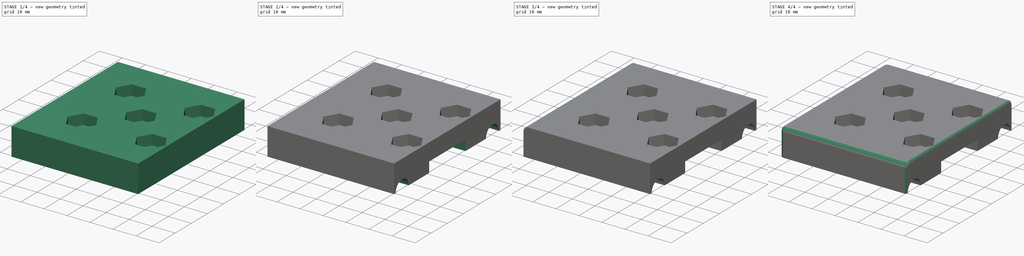
[diagram: build sequence overview — one tinted view per stage of 4, left to right]
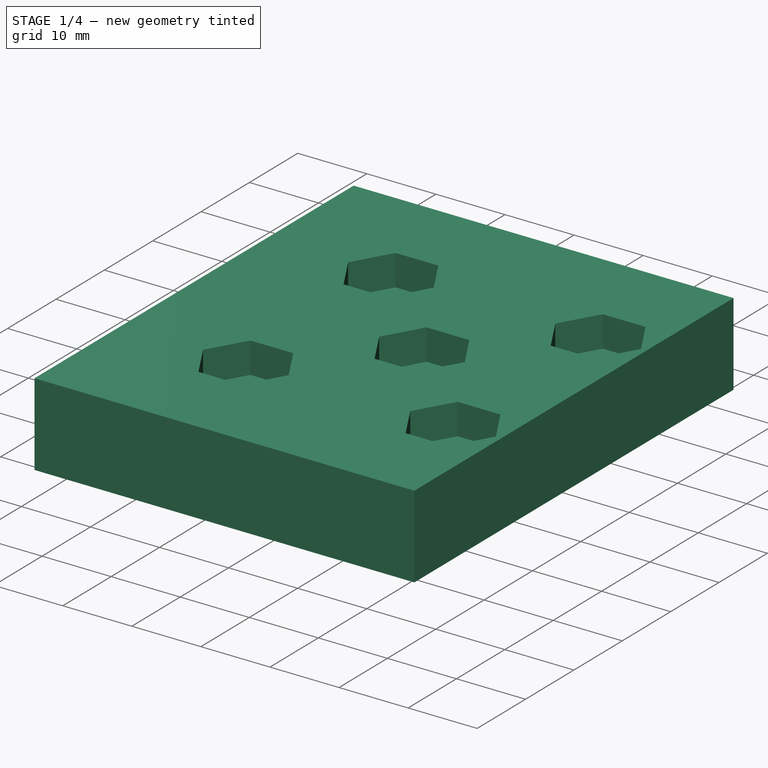
[diagram: stage 1 of 4 — iso view after this stage's code; geometry added in this stage tinted green]
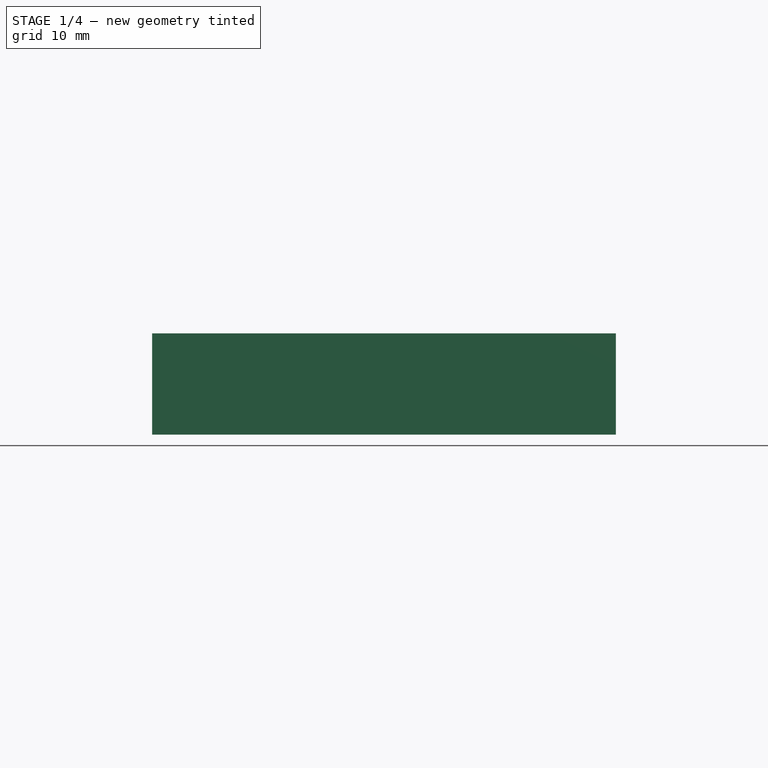
[diagram: stage 1 of 4 — front view after this stage's code; geometry added in this stage tinted green]
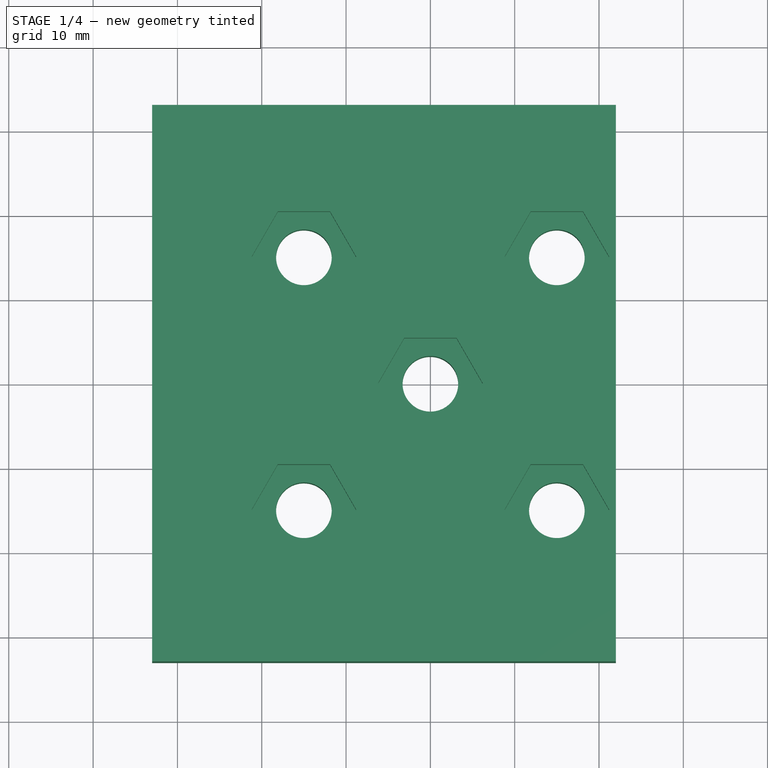
[diagram: stage 1 of 4 — top view after this stage's code; geometry added in this stage tinted green]
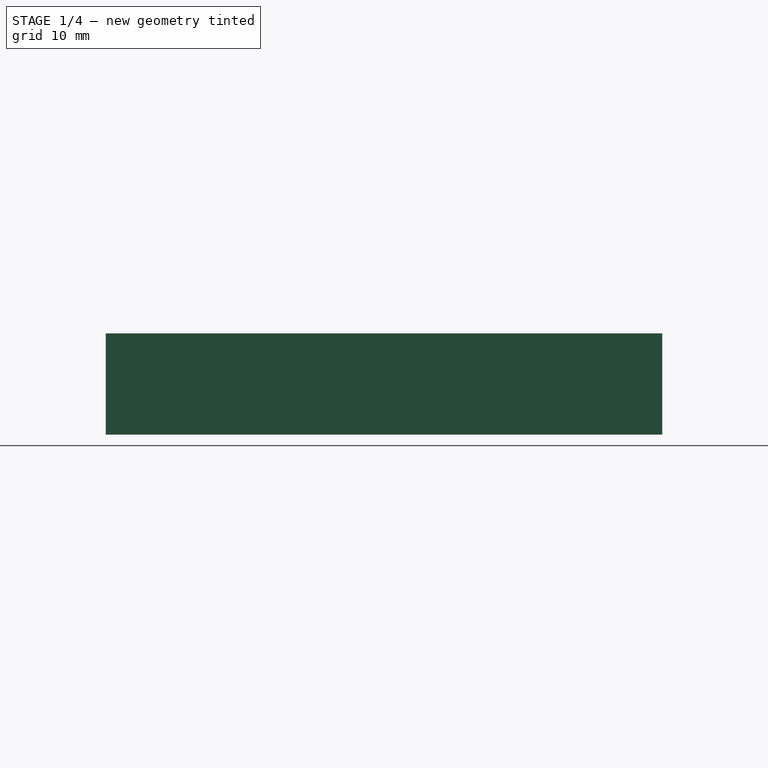
[diagram: stage 1 of 4 — right view after this stage's code; geometry added in this stage tinted green]
FCSTD DOCUMENT  (FreeCAD 0.17R9796 (Git))
Label: idlerSide_8mm_rods_v02
License: All rights reserved
LicenseURL: http://en.wikipedia.org/wiki/All_rights_reserved
objects: Sketcher::SketchObject×7, PartDesign::Pocket×6, PartDesign::Fillet×3, PartDesign::Pad×1, PartDesign::Chamfer×1
note: 25 computed .brp shape members not serialized (recipe doc carries the construction recipe); baked Part::Feature solids carry a one-line shape summary decoded from their .brp

FEATURE [Sketcher::SketchObject] Sketch  label="IdlerBlockSketch"
  MapMode = 5
  sketch-geometry (5):
    g0: LineSegment StartX=-33 StartY=33 StartZ=0 EndX=22 EndY=33 EndZ=0
    g1: LineSegment StartX=22 StartY=33 StartZ=0 EndX=22 EndY=-33 EndZ=0
    g2: LineSegment StartX=22 StartY=-33 StartZ=0 EndX=-33 EndY=-33 EndZ=0
    g3: LineSegment StartX=-33 StartY=-33 StartZ=0 EndX=-33 EndY=33 EndZ=0
    g4: GeomPoint [constr] X=-33 Y=0 Z=0
  constraints (13):
    c: Coincident(g0,g1)
    c: Coincident(g1,g2)
    c: Coincident(g2,g3)
    c: Coincident(g3,g0)
    c: Horizontal(g0)
    c: Horizontal(g2)
    c: Vertical(g1)
    c: Vertical(g3)
    c: Symmetric(g0,g2,g4)
    c: DistanceY(g4,g-1) = 0
    c: DistanceX(g0,g-1) = 33
    c: DistanceX(g-1,g0) = 22
    c: DistanceY(g3,g3) = 66
FEATURE [PartDesign::Pad] Pad  label="IdlerBlockPad"
  Length = 12
  Length2 = 100
  Profile = -> Sketch
  Type = 0
FEATURE [Sketcher::SketchObject] Sketch001  label="NutCatchersFrontSketch"
  MapMode = 5
  Placement = pos=(0,0,12) rot=(0,0,1;0rad)
  Support = -> [Pad]
  sketch-geometry (43):
    g0: LineSegment [constr] StartX=-15 StartY=15 StartZ=0 EndX=15 EndY=15 EndZ=0
    g1: LineSegment [constr] StartX=15 StartY=15 StartZ=0 EndX=15 EndY=-15 EndZ=0
    g2: LineSegment [constr] StartX=15 StartY=-15 StartZ=0 EndX=-15 EndY=-15 EndZ=0
    g3: LineSegment [constr] StartX=-15 StartY=-15 StartZ=0 EndX=-15 EndY=15 EndZ=0
    g4: GeomPoint [constr] X=-15 Y=0 Z=0
    g5: GeomPoint [constr] X=0 Y=15 Z=0
    g6: LineSegment [constr] StartX=-15 StartY=0 StartZ=0 EndX=0 EndY=0 EndZ=0
    g7: LineSegment [constr] StartX=0 StartY=0 StartZ=0 EndX=0 EndY=15 EndZ=0
    g8: LineSegment StartX=18.1 StartY=9.63064 StartZ=0 EndX=21.2 EndY=15 EndZ=0
    g9: LineSegment StartX=21.2 StartY=15 StartZ=0 EndX=18.1 EndY=20.3694 EndZ=0
    g10: LineSegment StartX=18.1 StartY=20.3694 StartZ=0 EndX=11.9 EndY=20.3694 EndZ=0
    g11: LineSegment StartX=11.9 StartY=20.3694 StartZ=0 EndX=8.8 EndY=15 EndZ=0
    g12: LineSegment StartX=8.8 StartY=15 StartZ=0 EndX=11.9 EndY=9.63064 EndZ=0
    g13: LineSegment StartX=11.9 StartY=9.63064 StartZ=0 EndX=18.1 EndY=9.63064 EndZ=0
    g14: Circle [constr] CenterX=15 CenterY=15 CenterZ=0 NormalX=0 NormalY=0 NormalZ=1 Radius=6.2
    g15: LineSegment StartX=-11.9 StartY=-20.3694 StartZ=0 EndX=-8.8 EndY=-15 EndZ=0
    g16: LineSegment StartX=-8.8 StartY=-15 StartZ=0 EndX=-11.9 EndY=-9.63064 EndZ=0
    g17: LineSegment StartX=-11.9 StartY=-9.63064 StartZ=0 EndX=-18.1 EndY=-9.63064 EndZ=0
    g18: LineSegment StartX=-18.1 StartY=-9.63064 StartZ=0 EndX=-21.2 EndY=-15 EndZ=0
    g19: LineSegment StartX=-21.2 StartY=-15 StartZ=0 EndX=-18.1 EndY=-20.3694 EndZ=0
    g20: LineSegment StartX=-18.1 StartY=-20.3694 StartZ=0 EndX=-11.9 EndY=-20.3694 EndZ=0
    g21: Circle [constr] CenterX=-15 CenterY=-15 CenterZ=0 NormalX=0 NormalY=0 NormalZ=1 Radius=6.2
    g22: LineSegment StartX=11.9 StartY=-9.63064 StartZ=0 EndX=8.8 EndY=-15 EndZ=0
    g23: LineSegment StartX=8.8 StartY=-15 StartZ=0 EndX=11.9 EndY=-20.3694 EndZ=0
    g24: LineSegment StartX=11.9 StartY=-20.3694 StartZ=0 EndX=18.1 EndY=-20.3694 EndZ=0
    g25: LineSegment StartX=18.1 StartY=-20.3694 StartZ=0 EndX=21.2 EndY=-15 EndZ=0
    g26: LineSegment StartX=21.2 StartY=-15 StartZ=0 EndX=18.1 EndY=-9.63064 EndZ=0
    g27: LineSegment StartX=18.1 StartY=-9.63064 StartZ=0 EndX=11.9 EndY=-9.63064 EndZ=0
    g28: Circle [constr] CenterX=15 CenterY=-15 CenterZ=0 NormalX=0 NormalY=0 NormalZ=1 Radius=6.2
    g29: LineSegment StartX=-8.8 StartY=15 StartZ=0 EndX=-11.9 EndY=20.3694 EndZ=0
    g30: LineSegment StartX=-11.9 StartY=20.3694 StartZ=0 EndX=-18.1 EndY=20.3694 EndZ=0
    g31: LineSegment StartX=-18.1 StartY=20.3694 StartZ=0 EndX=-21.2 EndY=15 EndZ=0
    g32: LineSegment StartX=-21.2 StartY=15 StartZ=0 EndX=-18.1 EndY=9.63064 EndZ=0
    g33: LineSegment StartX=-18.1 StartY=9.63064 StartZ=0 EndX=-11.9 EndY=9.63064 EndZ=0
    g34: LineSegment StartX=-11.9 StartY=9.63064 StartZ=0 EndX=-8.8 EndY=15 EndZ=0
    g35: Circle [constr] CenterX=-15 CenterY=15 CenterZ=0 NormalX=0 NormalY=0 NormalZ=1 Radius=6.2
    g36: LineSegment StartX=3.1 StartY=-5.36936 StartZ=0 EndX=6.2 EndY=0 EndZ=0
    g37: LineSegment StartX=6.2 StartY=0 StartZ=0 EndX=3.1 EndY=5.36936 EndZ=0
    g38: LineSegment StartX=3.1 StartY=5.36936 StartZ=0 EndX=-3.1 EndY=5.36936 EndZ=0
    g39: LineSegment StartX=-3.1 StartY=5.36936 StartZ=0 EndX=-6.2 EndY=0 EndZ=0
    g40: LineSegment StartX=-6.2 StartY=0 StartZ=0 EndX=-3.1 EndY=-5.36936 EndZ=0
    g41: LineSegment StartX=-3.1 StartY=-5.36936 StartZ=0 EndX=3.1 EndY=-5.36936 EndZ=0
    g42: Circle [constr] CenterX=0 CenterY=0 CenterZ=0 NormalX=0 NormalY=0 NormalZ=1 Radius=6.2
  constraints (98):
    c: Coincident(g0,g1)
    c: Coincident(g1,g2)
    c: Coincident(g2,g3)
    c: Coincident(g3,g0)
    c: Horizontal(g0)
    c: Horizontal(g2)
    c: Vertical(g1)
    c: Vertical(g3)
    c: Symmetric(g0,g0,g5)
    c: Symmetric(g0,g2,g4)
    c: DistanceY(g4,g-1) = 0
    c: DistanceX(g5,g-1) = 0
    c: Coincident(g6,g4)
    c: Coincident(g6,g-1)
    c: Coincident(g7,g-1)
    c: Coincident(g7,g5)
    c: Equal(g6,g7)
    c: DistanceX(g0,g5) = 15
    c: Coincident(g8,g9)
    c: Coincident(g9,g10)
    c: Coincident(g10,g11)
    c: Coincident(g11,g12)
    c: Coincident(g12,g13)
    c: Coincident(g13,g8)
    c: Equal(g8, g9-g13) x5
    c: PointOnObject(g8,g14)
    c: PointOnObject(g9,g14)
    c: PointOnObject(g10,g14)
    c: PointOnObject(g11,g14)
    c: PointOnObject(g12,g14)
    c: PointOnObject(g13,g14)
    c: Horizontal(g13)
    c: Coincident(g14,g0)
    c: Coincident(g15,g16)
    c: Coincident(g16,g17)
    c: Coincident(g17,g18)
    c: Coincident(g18,g19)
    c: Coincident(g19,g20)
    c: Coincident(g20,g15)
    c: Equal(g15, g16-g20) x5
    c: PointOnObject(g15,g21)
    c: PointOnObject(g16,g21)
    c: PointOnObject(g17,g21)
    c: PointOnObject(g18,g21)
    c: PointOnObject(g19,g21)
    c: PointOnObject(g20,g21)
    c: Horizontal(g20)
    c: Coincident(g22,g23)
    c: Coincident(g23,g24)
    c: Coincident(g24,g25)
    c: Coincident(g25,g26)
    c: Coincident(g26,g27)
    c: Coincident(g27,g22)
    c: Equal(g22, g23-g27) x5
    c: PointOnObject(g22,g28)
    c: PointOnObject(g23,g28)
    c: PointOnObject(g24,g28)
    c: PointOnObject(g25,g28)
    c: PointOnObject(g26,g28)
    c: PointOnObject(g27,g28)
    c: Horizontal(g27)
    c: Coincident(g1,g28)
    c: Coincident(g2,g21)
    c: Coincident(g29,g30)
    c: Coincident(g30,g31)
    c: Coincident(g31,g32)
    c: Coincident(g32,g33)
    c: Coincident(g33,g34)
    c: Coincident(g34,g29)
    c: Equal(g29, g30-g34) x5
    c: PointOnObject(g29,g35)
    c: PointOnObject(g30,g35)
    c: PointOnObject(g31,g35)
    c: PointOnObject(g32,g35)
    c: PointOnObject(g33,g35)
    c: PointOnObject(g34,g35)
    c: Horizontal(g33)
    c: Coincident(g0,g35)
    c: Coincident(g36,g37)
    c: Coincident(g37,g38)
    c: Coincident(g38,g39)
    c: Coincident(g39,g40)
    c: Coincident(g40,g41)
    c: Coincident(g41,g36)
    c: Equal(g36, g37-g41) x5
    c: PointOnObject(g36,g42)
    c: PointOnObject(g37,g42)
    c: PointOnObject(g38,g42)
    c: PointOnObject(g39,g42)
    c: PointOnObject(g40,g42)
    c: PointOnObject(g41,g42)
    c: Horizontal(g41)
    c: Coincident(g-1,g42)
    c: Equal(g35,g42)
    c: Equal(g42,g14)
    c: Equal(g14,g28)
    c: Equal(g28,g21)
    c: Radius(g42) = 6.2
FEATURE [PartDesign::Pocket] Pocket  label="NutCatchersFrontPocket"
  Length = 4.5
  Profile = -> Sketch001
  Type = 0
FEATURE [Sketcher::SketchObject] Sketch002  label="BoltHolesFrontSketch"
  MapMode = 5
  Placement = pos=(0,0,7.5) rot=(0,0,1;0rad)
  Support = -> [Pocket]
  sketch-geometry (13):
    g0: LineSegment [constr] StartX=-15 StartY=15 StartZ=0 EndX=15 EndY=15 EndZ=0
    g1: LineSegment [constr] StartX=15 StartY=15 StartZ=0 EndX=15 EndY=-15 EndZ=0
    g2: LineSegment [constr] StartX=15 StartY=-15 StartZ=0 EndX=-15 EndY=-15 EndZ=0
    g3: LineSegment [constr] StartX=-15 StartY=-15 StartZ=0 EndX=-15 EndY=15 EndZ=0
    g4: GeomPoint [constr] X=0 Y=15 Z=0
    g5: GeomPoint [constr] X=-15 Y=0 Z=0
    g6: LineSegment [constr] StartX=-15 StartY=0 StartZ=0 EndX=0 EndY=0 EndZ=0
    g7: LineSegment [constr] StartX=0 StartY=0 StartZ=0 EndX=0 EndY=15 EndZ=0
    g8: Circle CenterX=-15 CenterY=15 CenterZ=0 NormalX=0 NormalY=0 NormalZ=1 Radius=3.3
    g9: Circle CenterX=15 CenterY=15 CenterZ=0 NormalX=0 NormalY=0 NormalZ=1 Radius=3.3
    g10: Circle CenterX=0 CenterY=0 CenterZ=0 NormalX=0 NormalY=0 NormalZ=1 Radius=3.3
    g11: Circle CenterX=15 CenterY=-15 CenterZ=0 NormalX=0 NormalY=0 NormalZ=1 Radius=3.3
    g12: Circle CenterX=-15 CenterY=-15 CenterZ=0 NormalX=0 NormalY=0 NormalZ=1 Radius=3.3
  constraints (28):
    c: Coincident(g0,g1)
    c: Coincident(g1,g2)
    c: Coincident(g2,g3)
    c: Coincident(g3,g0)
    c: Horizontal(g0)
    c: Horizontal(g2)
    c: Vertical(g1)
    c: Vertical(g3)
    c: Symmetric(g2,g0,g5)
    c: Symmetric(g0,g0,g4)
    c: DistanceY(g5,g-1) = 0
    c: DistanceX(g-1,g4) = 0
    c: Coincident(g6,g5)
    c: Coincident(g6,g-1)
    c: Coincident(g7,g-1)
    c: Coincident(g7,g4)
    c: Equal(g6,g7)
    c: DistanceX(g0,g4) = 15
    c: Coincident(g0,g8)
    c: Coincident(g-1,g10)
    c: Coincident(g9,g0)
    c: Coincident(g12,g2)
    c: Coincident(g1,g11)
    c: Equal(g8,g9)
    c: Equal(g9,g10)
    c: Equal(g10,g11)
    c: Equal(g11,g12)
    c: Radius(g10) = 3.3
FEATURE [PartDesign::Pocket] Pocket001  label="BoltHolesFrontPocket"
  Length = 5
  Profile = -> Sketch002
  Type = 1
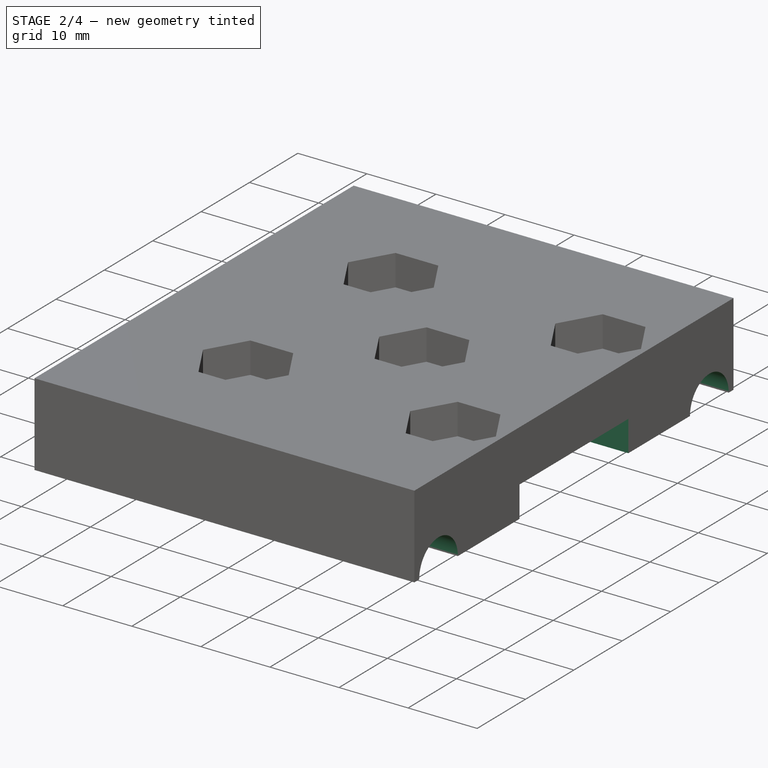
[diagram: stage 2 of 4 — iso view after this stage's code; geometry added in this stage tinted green]
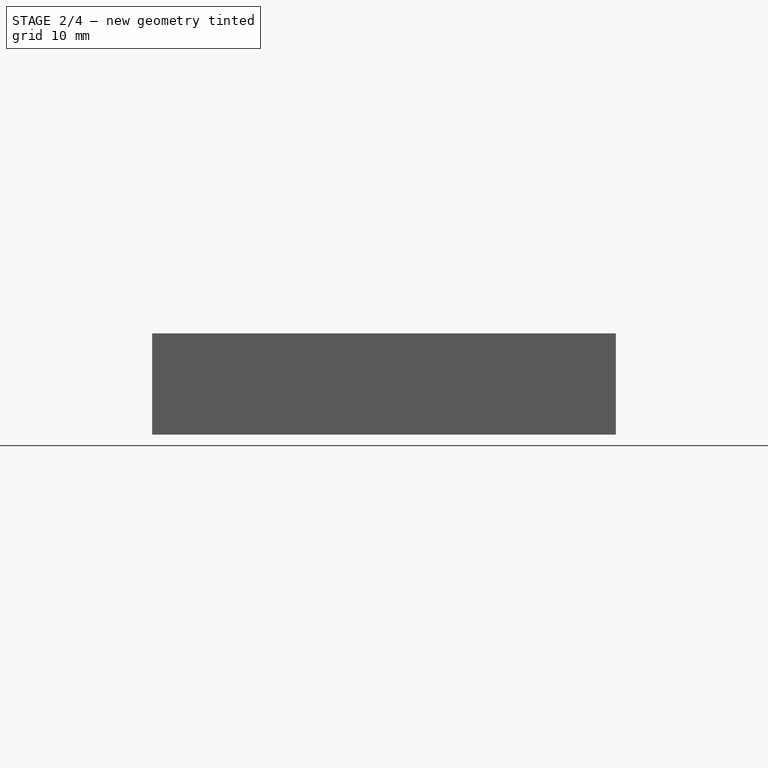
[diagram: stage 2 of 4 — front view after this stage's code; geometry added in this stage tinted green]
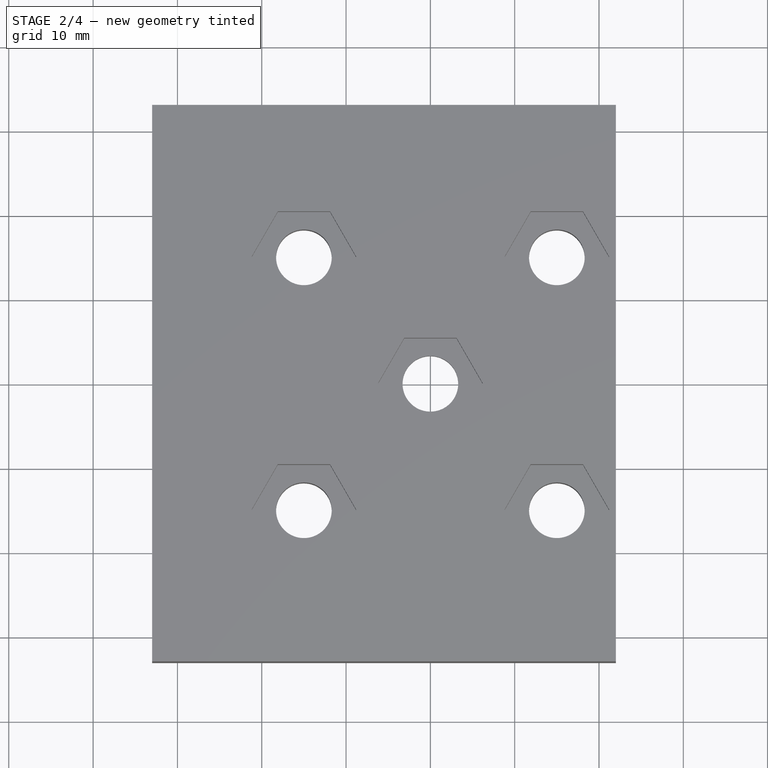
[diagram: stage 2 of 4 — top view after this stage's code; geometry added in this stage tinted green]
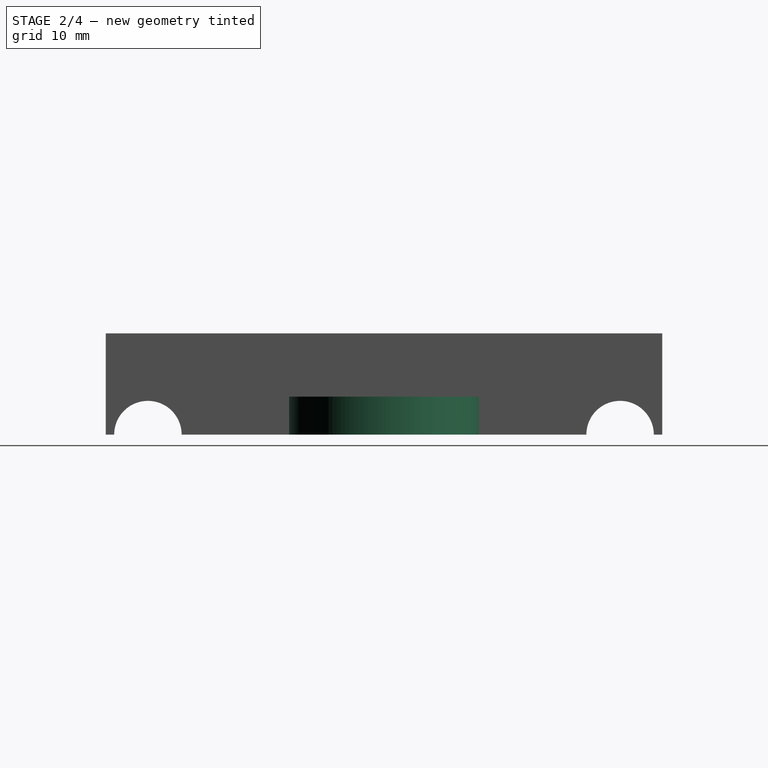
[diagram: stage 2 of 4 — right view after this stage's code; geometry added in this stage tinted green]
FEATURE [Sketcher::SketchObject] Sketch003  label="RodsHolderSketch"
  MapMode = 5
  Placement = pos=(22,0,0) rot=(0.57735,0.57735,0.57735;2.0944rad)
  Support = -> [Pocket001]
  sketch-geometry (4):
    g0: LineSegment [constr] StartX=0 StartY=0 StartZ=0 EndX=-28 EndY=0 EndZ=0
    g1: LineSegment [constr] StartX=0 StartY=0 StartZ=0 EndX=28 EndY=0 EndZ=0
    g2: Circle CenterX=-28 CenterY=0 CenterZ=0 NormalX=0 NormalY=0 NormalZ=1 Radius=4
    g3: Circle CenterX=28 CenterY=0 CenterZ=0 NormalX=0 NormalY=0 NormalZ=1 Radius=4
  constraints (10):
    c: Horizontal(g0)
    c: Horizontal(g1)
    c: Coincident(g0,g-1)
    c: Coincident(g-1,g1)
    c: Equal(g0,g1)
    c: DistanceX(g0,g-1) = 28
    c: Equal(g2,g3)
    c: Radius(g2) = 4
    c: Coincident(g0,g2)
    c: Coincident(g1,g3)
FEATURE [PartDesign::Pocket] Pocket002  label="RodHolderPocket"
  Length = 5
  Profile = -> Sketch003
  Type = 1
FEATURE [Sketcher::SketchObject] Sketch004  label="BeltPassageSketch"
  MapMode = 5
  Placement = pos=(0,0,0) rot=(1,0,0;3.14159rad)
  Support = -> [Pocket002]
  sketch-geometry (4):
    g0: ArcOfCircle CenterX=0 CenterY=0 CenterZ=0 NormalX=0 NormalY=0 NormalZ=1 Radius=11.25 StartAngle=1.5708 EndAngle=4.71239
    g1: LineSegment StartX=-1e-12 StartY=11.25 StartZ=0 EndX=22 EndY=11.25 EndZ=0
    g2: LineSegment StartX=3e-12 StartY=-11.25 StartZ=0 EndX=22 EndY=-11.25 EndZ=0
    g3: LineSegment StartX=22 StartY=11.25 StartZ=0 EndX=22 EndY=-11.25 EndZ=0
  constraints (13):
    c: Coincident(g0,g-1)
    c: PointOnObject(g0,g-2)
    c: PointOnObject(g0,g-2)
    c: DistanceY(g0,g0) = 22.5
    c: Coincident(g1,g0)
    c: Horizontal(g1)
    c: Coincident(g2,g0)
    c: Horizontal(g2)
    c: Coincident(g3,g1)
    c: Coincident(g3,g2)
    c: Vertical(g3)
    c: Equal(g1,g2)
    c: DistanceX(g0,g1) = 22
FEATURE [PartDesign::Pocket] Pocket003  label="BeltPassagePocket"
  Length = 4.5
  Profile = -> Sketch004
  Type = 0
FEATURE [Sketcher::SketchObject] Sketch005  label="BoltHolesSideSketch"
  MapMode = 5
  Placement = pos=(-33,0,0) rot=(0.57735,-0.57735,-0.57735;2.0944rad)
  Support = -> [Pocket003]
  sketch-geometry (4):
    g0: LineSegment [constr] StartX=0 StartY=0 StartZ=0 EndX=-15 EndY=0 EndZ=0
    g1: LineSegment [constr] StartX=0 StartY=0 StartZ=0 EndX=15 EndY=0 EndZ=0
    g2: Circle CenterX=-15 CenterY=0 CenterZ=0 NormalX=0 NormalY=0 NormalZ=1 Radius=3.3
    g3: Circle CenterX=15 CenterY=0 CenterZ=0 NormalX=0 NormalY=0 NormalZ=1 Radius=3.3
  constraints (10):
    c: Horizontal(g0)
    c: Horizontal(g1)
    c: Coincident(g0,g-1)
    c: Coincident(g-1,g1)
    c: Equal(g0,g1)
    c: DistanceX(g0,g-1) = 15
    c: Coincident(g0,g2)
    c: Coincident(g1,g3)
    c: Equal(g2,g3)
    c: Radius(g2) = 3.3
FEATURE [PartDesign::Pocket] Pocket004  label="BoltHolesPocket"
  Length = 5.5
  Profile = -> Sketch005
  Type = 0
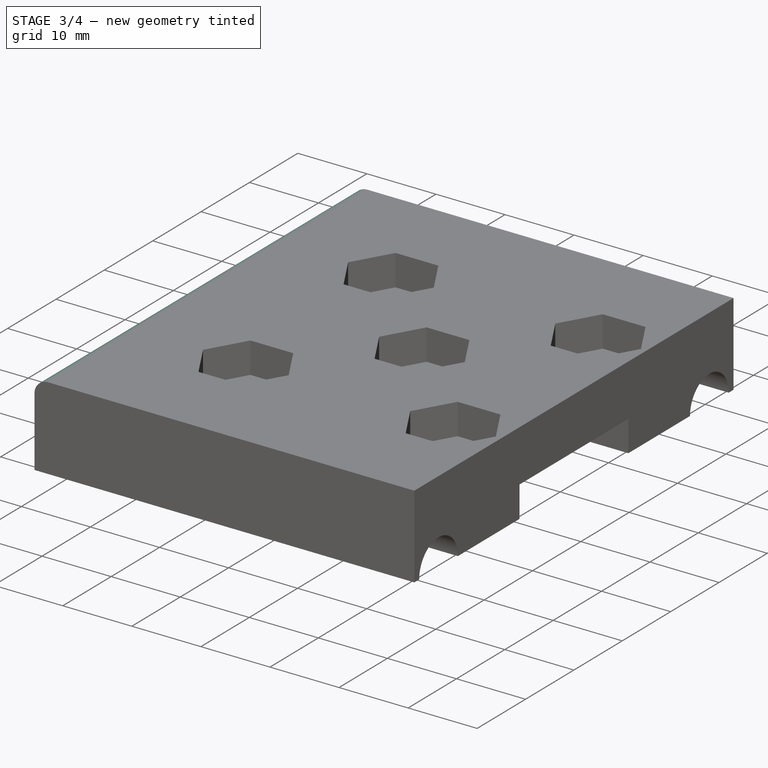
[diagram: stage 3 of 4 — iso view after this stage's code; geometry added in this stage tinted green]
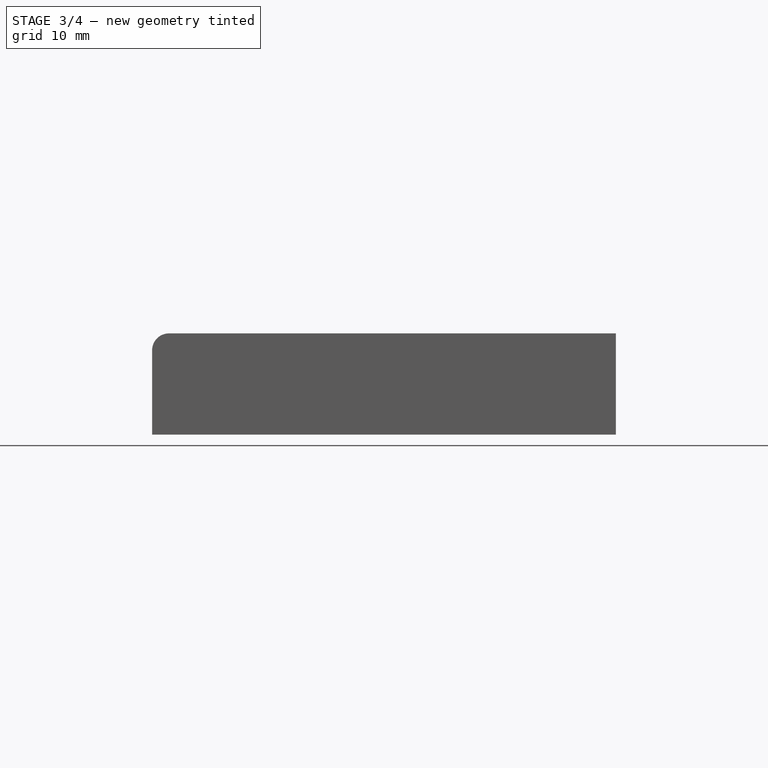
[diagram: stage 3 of 4 — front view after this stage's code; geometry added in this stage tinted green]
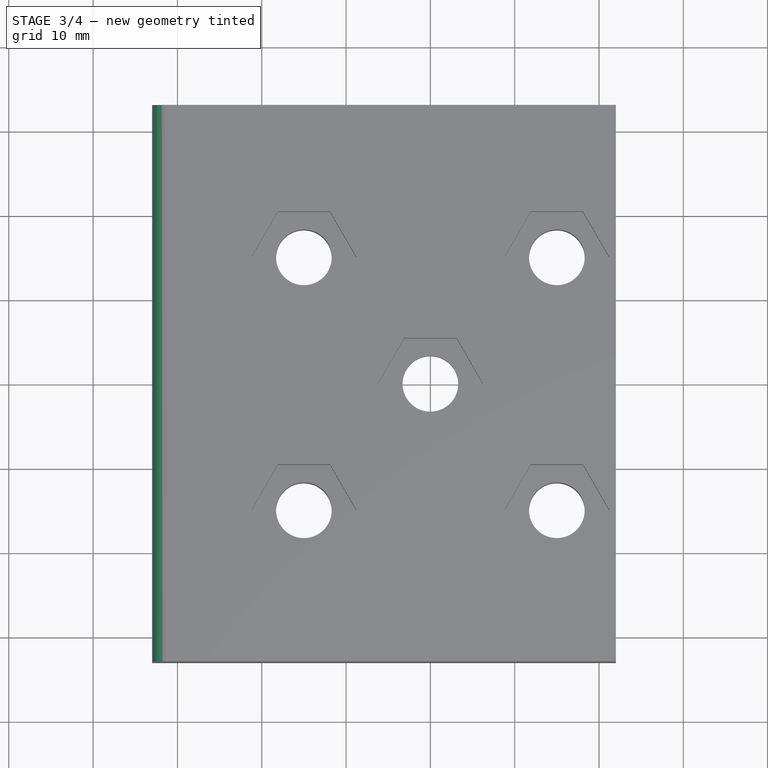
[diagram: stage 3 of 4 — top view after this stage's code; geometry added in this stage tinted green]
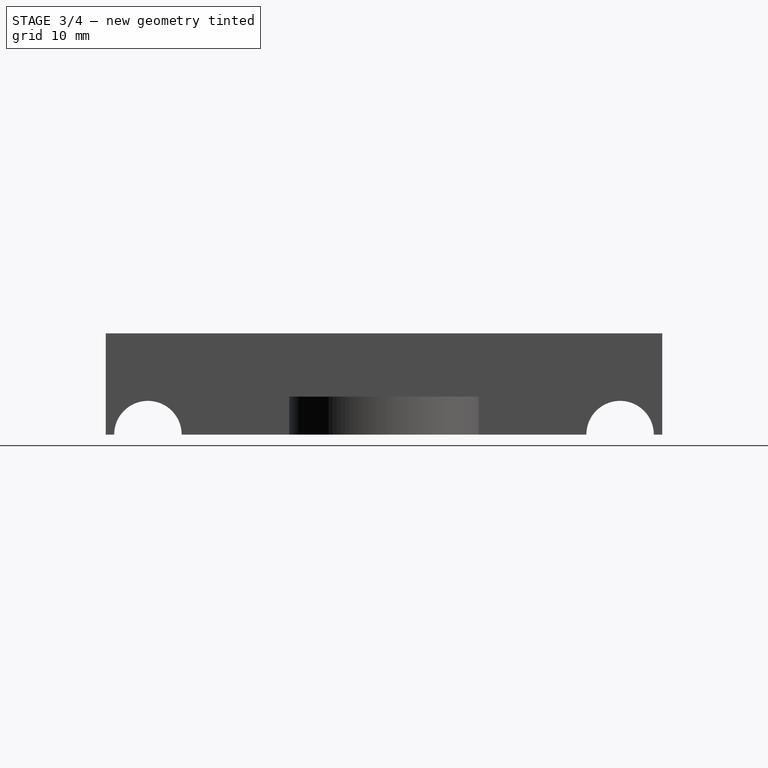
[diagram: stage 3 of 4 — right view after this stage's code; geometry added in this stage tinted green]
FEATURE [Sketcher::SketchObject] Sketch006  label="NutCatchersSideSketch"
  MapMode = 5
  Placement = pos=(-27.5,0,0) rot=(0.57735,-0.57735,-0.57735;2.0944rad)
  Support = -> [Pocket004]
  sketch-geometry (16):
    g0: LineSegment [constr] StartX=0 StartY=0 StartZ=0 EndX=-15 EndY=0 EndZ=0
    g1: LineSegment [constr] StartX=0 StartY=0 StartZ=0 EndX=15 EndY=0 EndZ=0
    g2: LineSegment StartX=-9.63064 StartY=3.1 StartZ=0 EndX=-15 EndY=6.2 EndZ=0
    g3: LineSegment StartX=-15 StartY=6.2 StartZ=0 EndX=-20.3694 EndY=3.1 EndZ=0
    g4: LineSegment StartX=-20.3694 StartY=3.1 StartZ=0 EndX=-20.3694 EndY=-3.1 EndZ=0
    g5: LineSegment StartX=-20.3694 StartY=-3.1 StartZ=0 EndX=-15 EndY=-6.2 EndZ=0
    g6: LineSegment StartX=-15 StartY=-6.2 StartZ=0 EndX=-9.63064 EndY=-3.1 EndZ=0
    g7: LineSegment StartX=-9.63064 StartY=-3.1 StartZ=0 EndX=-9.63064 EndY=3.1 EndZ=0
    g8: Circle [constr] CenterX=-15 CenterY=0 CenterZ=0 NormalX=0 NormalY=0 NormalZ=1 Radius=6.2
    g9: LineSegment StartX=20.3694 StartY=3.1 StartZ=0 EndX=15 EndY=6.2 EndZ=0
    g10: LineSegment StartX=15 StartY=6.2 StartZ=0 EndX=9.63064 EndY=3.1 EndZ=0
    g11: LineSegment StartX=9.63064 StartY=3.1 StartZ=0 EndX=9.63064 EndY=-3.1 EndZ=0
    g12: LineSegment StartX=9.63064 StartY=-3.1 StartZ=0 EndX=15 EndY=-6.2 EndZ=0
    g13: LineSegment StartX=15 StartY=-6.2 StartZ=0 EndX=20.3694 EndY=-3.1 EndZ=0
    g14: LineSegment StartX=20.3694 StartY=-3.1 StartZ=0 EndX=20.3694 EndY=3.1 EndZ=0
    g15: Circle [constr] CenterX=15 CenterY=0 CenterZ=0 NormalX=0 NormalY=0 NormalZ=1 Radius=6.2
  constraints (38):
    c: Horizontal(g0)
    c: Horizontal(g1)
    c: Coincident(g0,g-1)
    c: Coincident(g-1,g1)
    c: Equal(g0,g1)
    c: DistanceX(g0,g-1) = 15
    c: Coincident(g2,g3)
    c: Coincident(g3,g4)
    c: Coincident(g4,g5)
    c: Coincident(g5,g6)
    c: Coincident(g6,g7)
    c: Coincident(g7,g2)
    c: Equal(g2, g3-g7) x5
    c: PointOnObject(g2,g8)
    c: PointOnObject(g3,g8)
    c: PointOnObject(g4,g8)
    c: PointOnObject(g5,g8)
    c: PointOnObject(g6,g8)
    c: PointOnObject(g7,g8)
    c: Vertical(g7)
    c: Coincident(g9,g10)
    c: Coincident(g10,g11)
    c: Coincident(g11,g12)
    c: Coincident(g12,g13)
    c: Coincident(g13,g14)
    c: Coincident(g14,g9)
    c: Equal(g9, g10-g14) x5
    c: PointOnObject(g9,g15)
    c: PointOnObject(g10,g15)
    c: PointOnObject(g11,g15)
    c: PointOnObject(g12,g15)
    c: PointOnObject(g13,g15)
    c: PointOnObject(g14,g15)
    c: Vertical(g14)
    c: Coincident(g1,g15)
    c: Coincident(g0,g8)
    c: Equal(g8,g15)
    c: Radius(g8) = 6.2
FEATURE [PartDesign::Pocket] Pocket005  label="NutCatchersSidePocket"
  Length = 5.5
  Profile = -> Sketch006
  Type = 0
FEATURE [PartDesign::Fillet] Fillet
  Base = -> Pocket005 [Edge14]
  Radius = 2
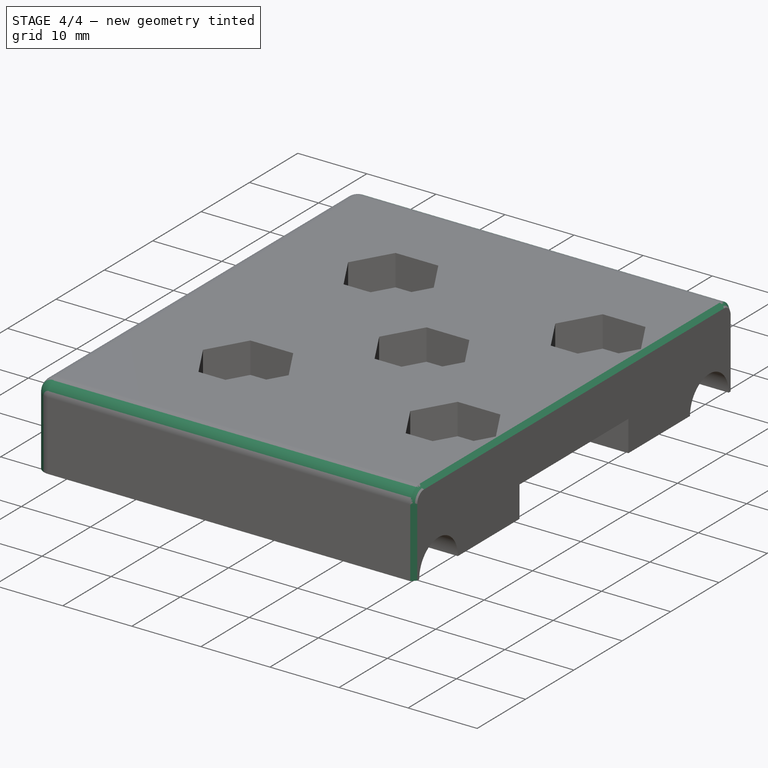
[diagram: stage 4 of 4 — iso view after this stage's code; geometry added in this stage tinted green]
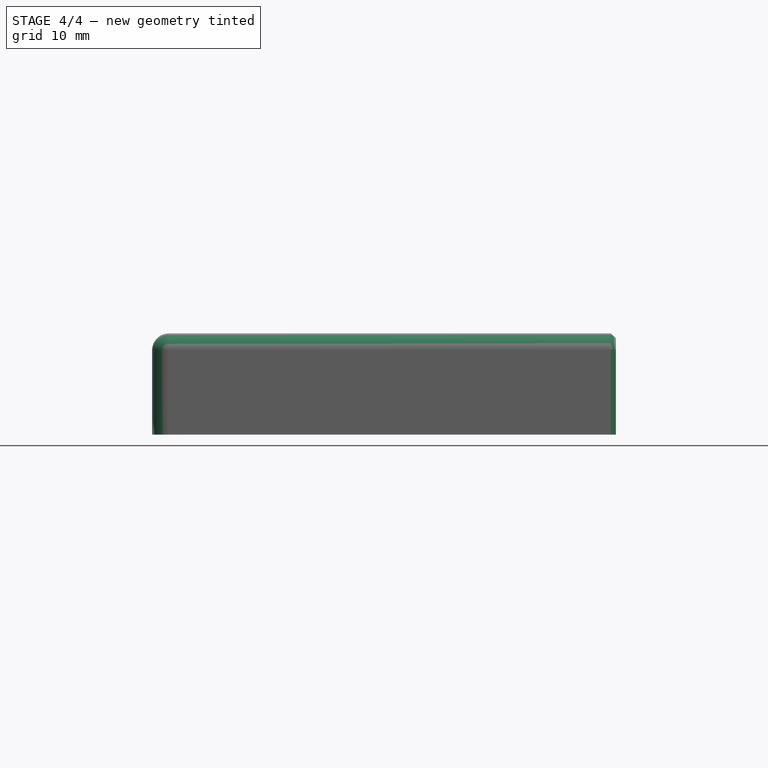
[diagram: stage 4 of 4 — front view after this stage's code; geometry added in this stage tinted green]
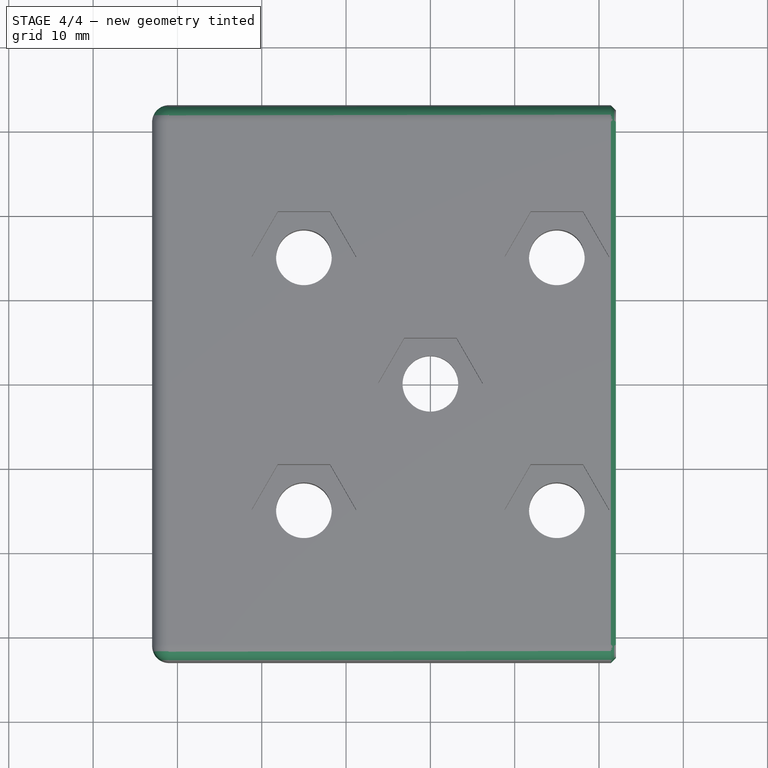
[diagram: stage 4 of 4 — top view after this stage's code; geometry added in this stage tinted green]
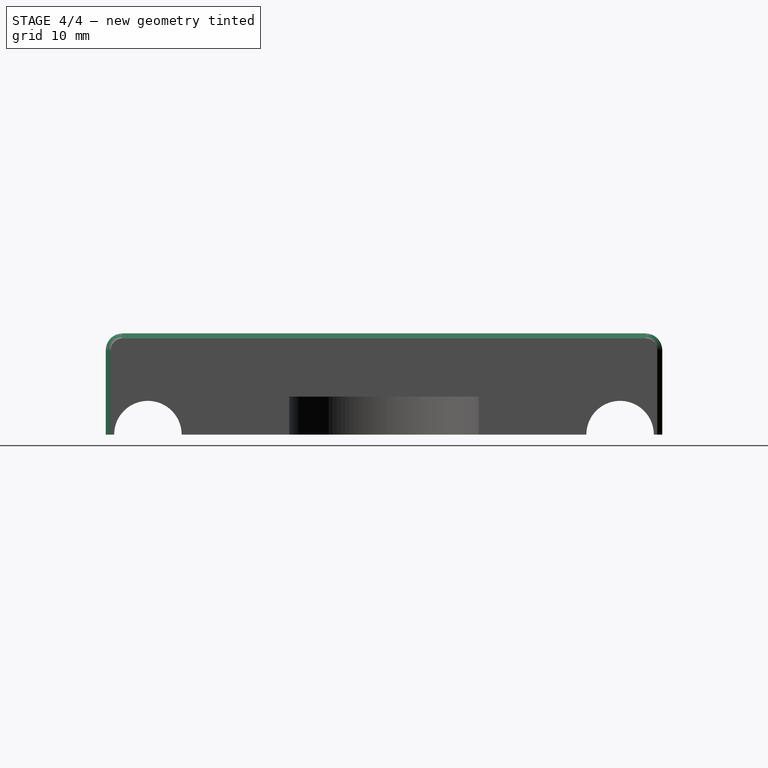
[diagram: stage 4 of 4 — right view after this stage's code; geometry added in this stage tinted green]
FEATURE [PartDesign::Fillet] Fillet001
  Base = -> Fillet [Edge22]
  Radius = 2
FEATURE [PartDesign::Fillet] Fillet002
  Base = -> Fillet001 [Edge20]
  Radius = 2
FEATURE [PartDesign::Chamfer] Chamfer
  Base = -> Fillet002 [Edge59]
  Size = 0.6
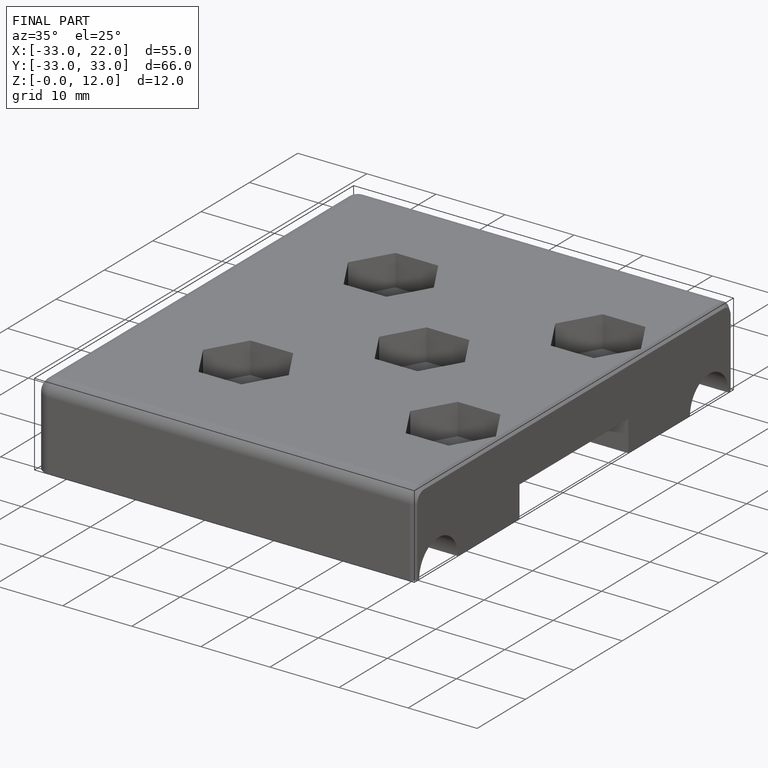
[diagram: finished part — iso view with bounding-box wireframe]
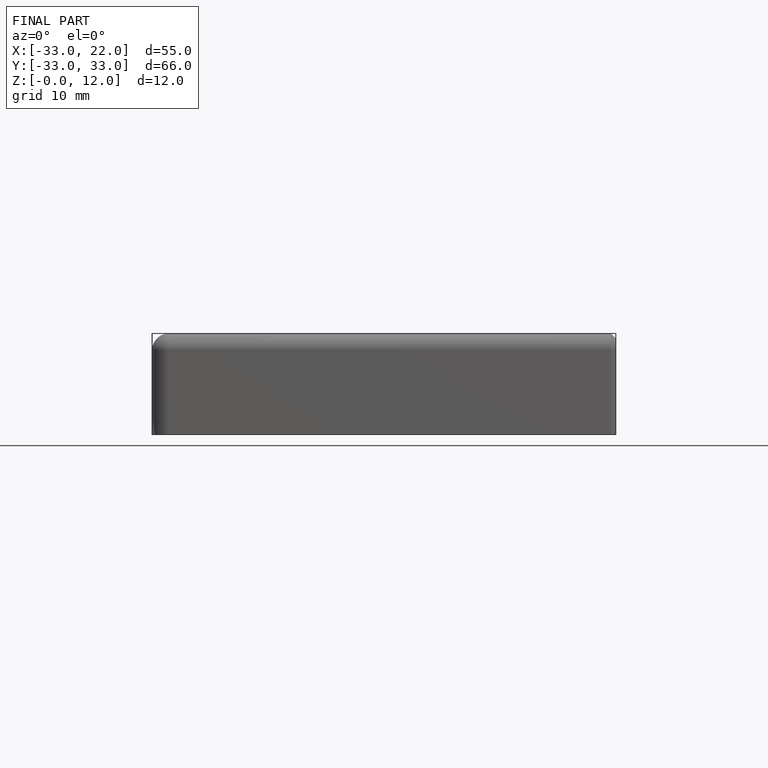
[diagram: finished part — front view with bounding-box wireframe]
